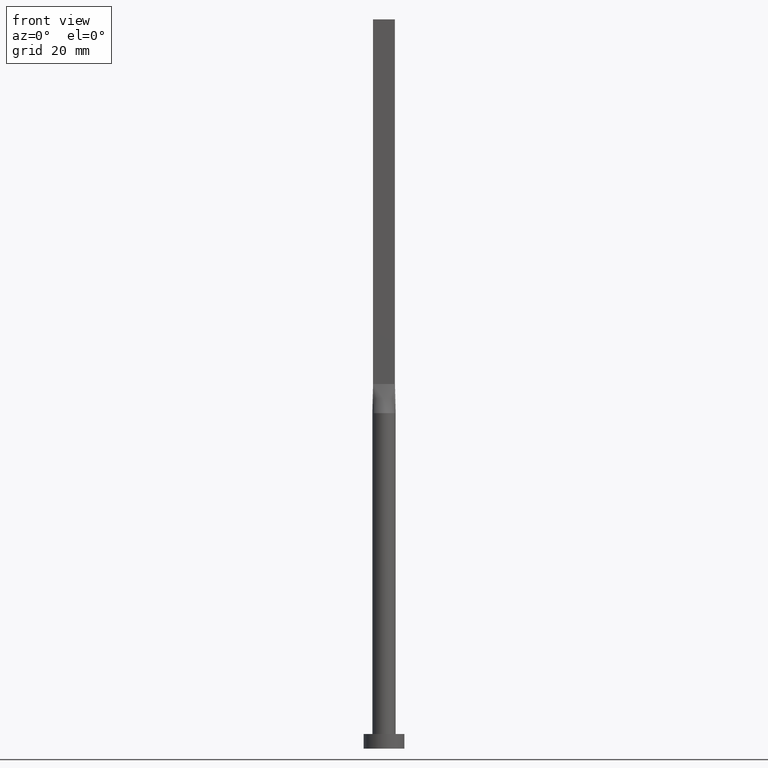
[diagram: clean part render]
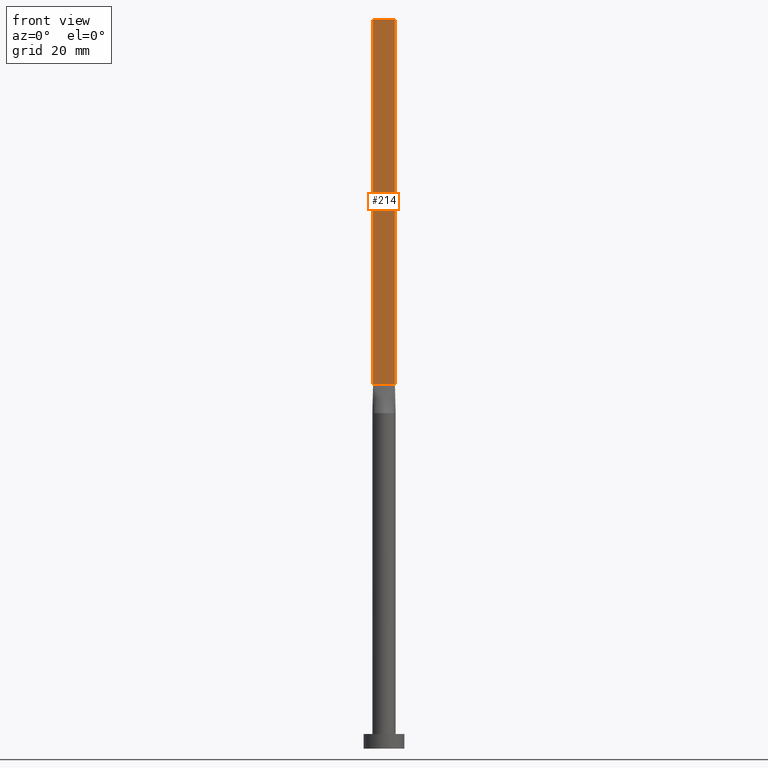
[diagram: same view with one face highlighted and labeled with its STEP entity id]
A machine part, front view. The second image highlights one B-rep face of the part: STEP entity #214.
In plain terms, the highlighted planar face has unit normal (0, 1, -0).
Its self-contained STEP definition (entity closure, byte-faithful):
#57 = ORIENTED_EDGE ( 'NONE', *, *, #508, .F. ) ;
#83 = VERTEX_POINT ( 'NONE', #126 ) ;
#86 = CARTESIAN_POINT ( 'NONE',  ( -3.750000000000000000, -0.7499999999999993339, 250.0000000000000000 ) ) ;
#117 = VERTEX_POINT ( 'NONE', #569 ) ;
#121 = DIRECTION ( 'NONE',  ( 5.782411586589357392E-17, 1.000000000000000000, -0.000000000000000000 ) ) ;
#126 = CARTESIAN_POINT ( 'NONE',  ( 3.750000000000000000, -0.7499999999999997780, 125.0000000000000000 ) ) ;
#134 = EDGE_CURVE ( 'NONE', #136, #83, #272, .T. ) ;
#136 = VERTEX_POINT ( 'NONE', #141 ) ;
#141 = CARTESIAN_POINT ( 'NONE',  ( -3.750000000000000000, -0.7499999999999993339, 125.0000000000000000 ) ) ;
#149 = ORIENTED_EDGE ( 'NONE', *, *, #562, .T. ) ;
#158 = FACE_OUTER_BOUND ( 'NONE', #442, .T. ) ;
#164 = DIRECTION ( 'NONE',  ( 1.000000000000000000, -5.782411586589357392E-17, 0.000000000000000000 ) ) ;
#166 = VECTOR ( 'NONE', #443, 1000.000000000000000 ) ;
#174 = VERTEX_POINT ( 'NONE', #336 ) ;
#181 = CARTESIAN_POINT ( 'NONE',  ( -3.750000000000000000, -0.7499999999999993339, 250.0000000000000000 ) ) ;
#204 = LINE ( 'NONE', #544, #547 ) ;
#212 = VECTOR ( 'NONE', #164, 1000.000000000000000 ) ;
#214 = ADVANCED_FACE ( 'NONE', ( #158 ), #390, .F. ) ;
#229 = EDGE_CURVE ( 'NONE', #117, #83, #204, .T. ) ;
#272 = LINE ( 'NONE', #368, #166 ) ;
#304 = AXIS2_PLACEMENT_3D ( 'NONE', #571, #121, #346 ) ;
#336 = CARTESIAN_POINT ( 'NONE',  ( -3.750000000000000000, -0.7499999999999993339, 250.0000000000000000 ) ) ;
#346 = DIRECTION ( 'NONE',  ( -1.000000000000000000, 5.782411586589357392E-17, 0.000000000000000000 ) ) ;
#359 = VECTOR ( 'NONE', #396, 1000.000000000000000 ) ;
#367 = ORIENTED_EDGE ( 'NONE', *, *, #229, .F. ) ;
#368 = CARTESIAN_POINT ( 'NONE',  ( -3.750000000000000000, -0.7499999999999993339, 125.0000000000000000 ) ) ;
#390 = PLANE ( 'NONE',  #304 ) ;
#396 = DIRECTION ( 'NONE',  ( -0.000000000000000000, -0.000000000000000000, -1.000000000000000000 ) ) ;
#403 = LINE ( 'NONE', #181, #359 ) ;
#437 = LINE ( 'NONE', #86, #212 ) ;
#442 = EDGE_LOOP ( 'NONE', ( #499, #367, #57, #149 ) ) ;
#443 = DIRECTION ( 'NONE',  ( 1.000000000000000000, -5.782411586589357392E-17, 0.000000000000000000 ) ) ;
#455 = DIRECTION ( 'NONE',  ( -0.000000000000000000, -0.000000000000000000, -1.000000000000000000 ) ) ;
#499 = ORIENTED_EDGE ( 'NONE', *, *, #134, .T. ) ;
#508 = EDGE_CURVE ( 'NONE', #174, #117, #437, .T. ) ;
#544 = CARTESIAN_POINT ( 'NONE',  ( 3.750000000000000000, -0.7499999999999997780, 250.0000000000000000 ) ) ;
#547 = VECTOR ( 'NONE', #455, 1000.000000000000000 ) ;
#562 = EDGE_CURVE ( 'NONE', #174, #136, #403, .T. ) ;
#569 = CARTESIAN_POINT ( 'NONE',  ( 3.750000000000000000, -0.7499999999999997780, 250.0000000000000000 ) ) ;
#571 = CARTESIAN_POINT ( 'NONE',  ( -3.750000000000000000, -0.7499999999999993339, 250.0000000000000000 ) ) ;